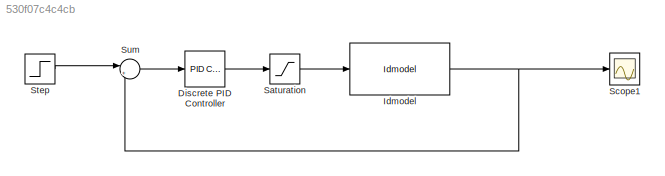
MODEL slx_530f07c4c4cb
KIND model
CONFIG AbsTol = auto
CONFIG EnableMultiTasking = off
CONFIG FixedStep = auto
CONFIG MaxStep = auto
CONFIG MinStep = auto
CONFIG RelTol = 1e-3
CONFIG SampleTimeConstraint = Unconstrained
CONFIG SolverName = VariableStepAuto
CONFIG StartTime = 0.0
CONFIG StopTime = 10.0
BLOCK [Reference] Discrete PID Controller  REF=slpidlib/PID Controller
  LibrarySourceBlock = simulink/Discrete/Discrete PID Controller
  SourceBlock = slpidlib/PID Controller
  SourceType = PID 1dof
BLOCK [Reference] Idmodel  REF=slident/Models/Idmodel  (lib defined in mdl_f7d4911ca73a)
  SourceBlock = slident/Models/Idmodel
  SourceType = Idmodel Block
BLOCK [Saturate] Saturation
  LowerLimit = -100
  UpperLimit = 100
BLOCK [Scope] Scope1
  Floating = off
  NumInputPorts = 1
  ScopeSpecificationString = Simulink.scopes.TimeScopeBlockCfg('CurrentConfiguration', extmgr.ConfigurationSet(extmgr.Configuration('Core','General UI',true),extmgr.Configuration('Core','Source UI',true),extmgr.Configuration('Sources','WiredSimulink',true,'DataLoggingVariableName','ScopeData1'),extmgr.Configuration('Visuals','Time Domain',true,'SerializedDisplays',{struct('MinYLimReal','-8.6712','MaxYLimReal','78.04081','YLab...<+1396ch>
BLOCK [Step] Step
  After = 60
  SampleTime = 0.05
  Time = 0
BLOCK [Sum] Sum
  Inputs = |+-
LINE Discrete PID Controller:1 -> Saturation:1
NET Idmodel:1 -> Scope1:1, Sum:2
LINE Saturation:1 -> Idmodel:1
LINE Step:1 -> Sum:1
LINE Sum:1 -> Discrete PID Controller:1
note: NET lines group one-source signal fan-out (src -> all destinations, sorted); 1:1 wires keep LINE
